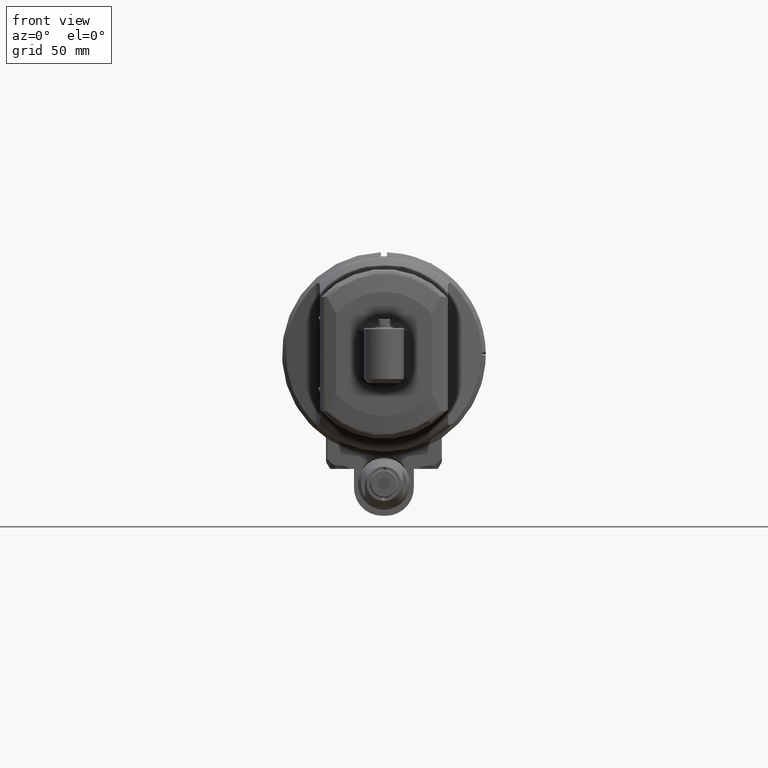
[diagram: clean part render]
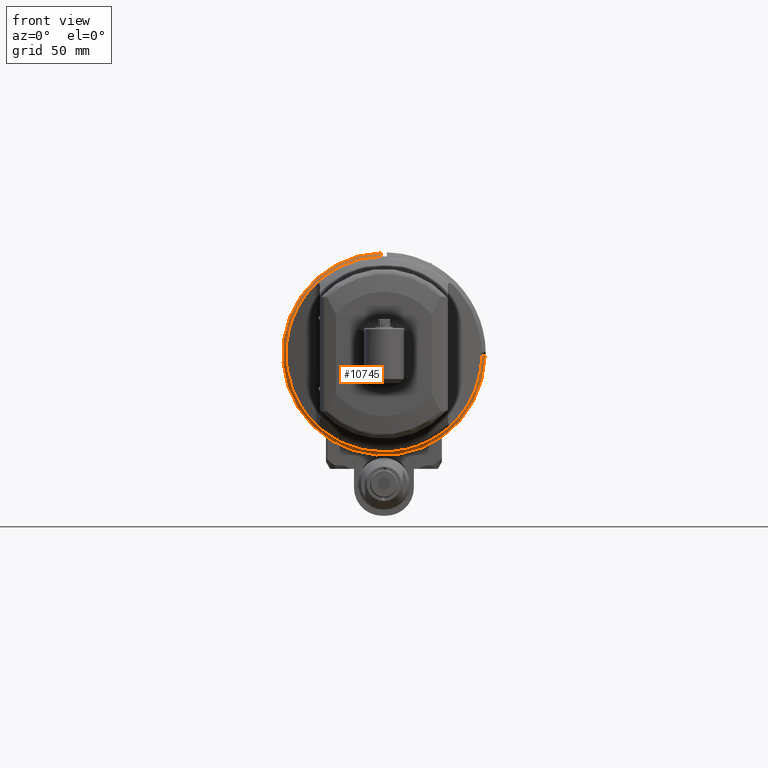
[diagram: same view with one face highlighted and labeled with its STEP entity id]
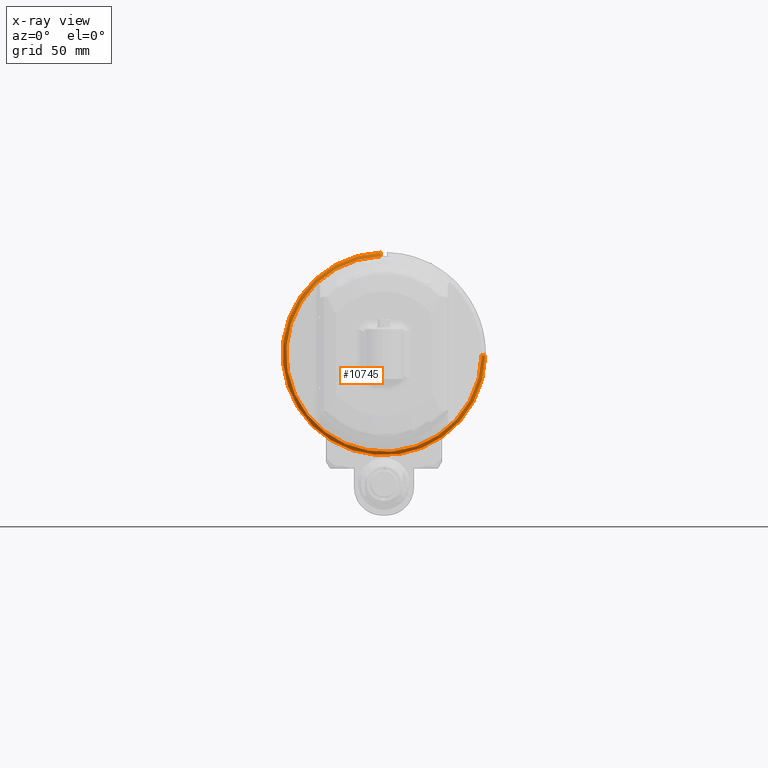
[diagram: x-ray of the same camera — body ghosted, the highlighted face saturated]
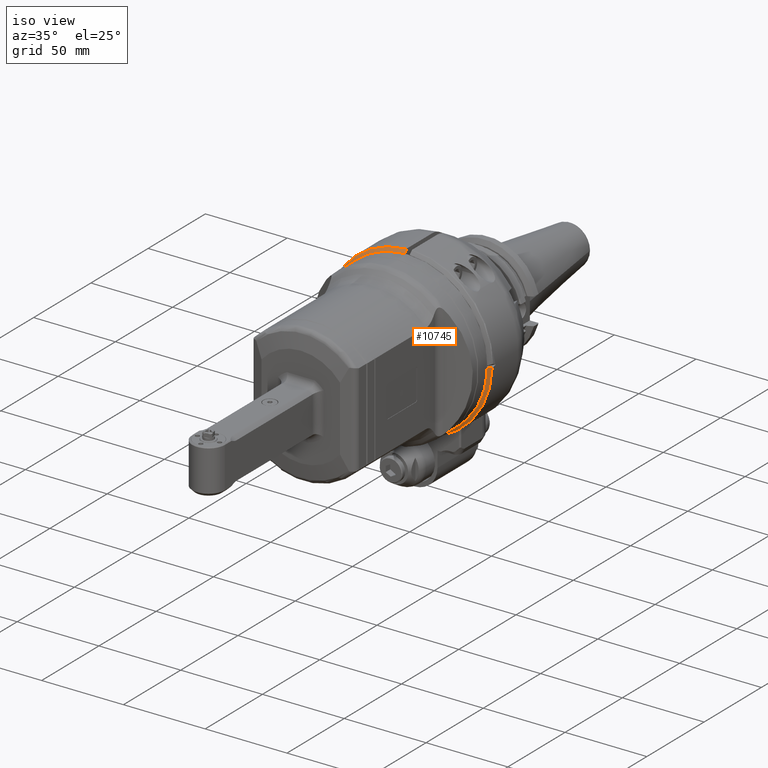
[diagram: same view with one face highlighted and labeled with its STEP entity id]
A machine part, front view. The second image highlights one B-rep face of the part: STEP entity #10745.
The next image is the same camera in x-ray: the body ghosted, the highlighted face saturated — about 0% of this face is hidden behind the body in this view.
A second angle (iso view) of the same face is appended — the face is thin or edge-on in the first view.
In plain terms, the highlighted conical surface has half-angle 45 deg.
Its self-contained STEP definition (entity closure, byte-faithful):
#84=CONICAL_SURFACE('',#11887,1.96273832246417,0.785398163397448);
#185=(
BOUNDED_CURVE()
B_SPLINE_CURVE(2,(#20057,#20058,#20059),.UNSPECIFIED.,.F.,.F.)
B_SPLINE_CURVE_WITH_KNOTS((3,3),(0.508727233088621,0.764831043681162),
 .UNSPECIFIED.)
CURVE()
GEOMETRIC_REPRESENTATION_ITEM()
RATIONAL_B_SPLINE_CURVE((1.00136985167552,1.00128834032644,1.00077759520502))
REPRESENTATION_ITEM('')
);
#186=(
BOUNDED_CURVE()
B_SPLINE_CURVE(2,(#20075,#20076,#20077),.UNSPECIFIED.,.F.,.F.)
B_SPLINE_CURVE_WITH_KNOTS((3,3),(-5.67826879781545,-5.3590005535133),
 .UNSPECIFIED.)
CURVE()
GEOMETRIC_REPRESENTATION_ITEM()
RATIONAL_B_SPLINE_CURVE((1.00308912931936,1.0055775614748,1.00777639681389))
REPRESENTATION_ITEM('')
);
#2546=FACE_OUTER_BOUND('',#3235,.T.);
#3235=EDGE_LOOP('',(#8597,#8598,#8599,#8600));
#3917=CIRCLE('',#11883,1.92913385826772);
#3920=CIRCLE('',#11888,1.99634278666102);
#4781=VERTEX_POINT('',#20054);
#4782=VERTEX_POINT('',#20056);
#4784=VERTEX_POINT('',#20065);
#4787=VERTEX_POINT('',#20074);
#6132=EDGE_CURVE('',#4782,#4781,#185,.T.);
#6137=EDGE_CURVE('',#4784,#4781,#3917,.T.);
#6140=EDGE_CURVE('',#4784,#4787,#186,.T.);
#6141=EDGE_CURVE('',#4782,#4787,#3920,.T.);
#8597=ORIENTED_EDGE('',*,*,#6132,.T.);
#8598=ORIENTED_EDGE('',*,*,#6137,.F.);
#8599=ORIENTED_EDGE('',*,*,#6140,.T.);
#8600=ORIENTED_EDGE('',*,*,#6141,.F.);
#10745=ADVANCED_FACE('',(#2546),#84,.T.);
#11883=AXIS2_PLACEMENT_3D('',#20067,#14323,#14324);
#11887=AXIS2_PLACEMENT_3D('',#20073,#14331,#14332);
#11888=AXIS2_PLACEMENT_3D('',#20078,#14333,#14334);
#14323=DIRECTION('center_axis',(0.,-1.,0.));
#14324=DIRECTION('ref_axis',(-0.0306122448979601,0.,0.999531335407904));
#14331=DIRECTION('center_axis',(0.,1.,0.));
#14332=DIRECTION('ref_axis',(0.,0.,-1.));
#14333=DIRECTION('center_axis',(0.,1.,0.));
#14334=DIRECTION('ref_axis',(0.,0.,-1.));
#20054=CARTESIAN_POINT('',(1.92905910243819,0.,-0.0169830037215039));
#20056=CARTESIAN_POINT('',(1.99591598617362,0.067208928393189,-0.0412782992577165));
#20057=CARTESIAN_POINT('Ctrl Pts',(1.99591598617359,0.0672089283932863,
-0.0412782992575261));
#20058=CARTESIAN_POINT('Ctrl Pts',(1.96181674022998,0.0328614656842792,
-0.0289212173749634));
#20059=CARTESIAN_POINT('Ctrl Pts',(1.92905910243813,1.12541144946592E-13,
-0.0169830037213433));
#20065=CARTESIAN_POINT('',(-0.0590551181102362,0.,1.92822974153504));
#20067=CARTESIAN_POINT('Origin',(0.,-2.23792987640984E-15,0.));
#20073=CARTESIAN_POINT('Origin',(0.,0.0336044641965866,0.));
#20074=CARTESIAN_POINT('',(-0.0590551181102374,0.0672089283932709,1.99546912150456));
#20075=CARTESIAN_POINT('Ctrl Pts',(-0.0590551181102362,1.47754870438158E-13,
1.92822974153489));
#20076=CARTESIAN_POINT('Ctrl Pts',(-0.0590551181102362,0.0330285934727254,
1.96127382159773));
#20077=CARTESIAN_POINT('Ctrl Pts',(-0.0590551181102362,0.0672089283933903,
1.99546912150446));
#20078=CARTESIAN_POINT('Origin',(0.,0.067208928393189,0.));